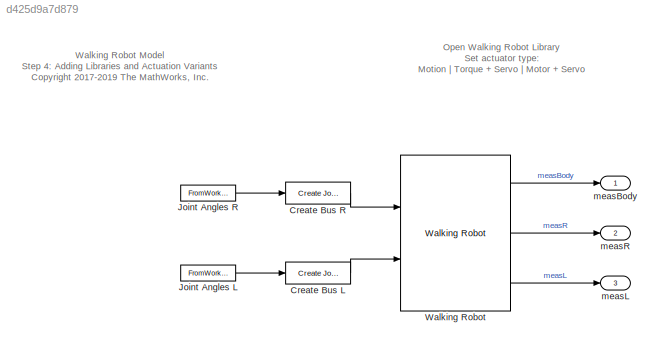
MODEL slx_d425d9a7d879
KIND model
CONFIG AbsTol = auto
CONFIG EnableMultiTasking = off
CONFIG FixedStep = auto
CONFIG MaxStep = auto
CONFIG MinStep = auto
CONFIG PreLoadFcn = robotParameters\nload jointAngs
CONFIG RelTol = 1e-3
CONFIG SampleTimeConstraint = Unconstrained
CONFIG Solver = VariableStepAuto
CONFIG SolverName = VariableStepAuto
CONFIG StartTime = 0.0
CONFIG StopTime = 10.0
BLOCK [Reference] Create Bus L  REF=walkingRobotUtils/Create Joint Angle Bus
  Ports = [1, 1]
  SourceBlock = walkingRobotUtils/Create Joint Angle Bus
  SourceType = SubSystem
BLOCK [Reference] Create Bus R  REF=walkingRobotUtils/Create Joint Angle Bus
  Ports = [1, 1]
  SourceBlock = walkingRobotUtils/Create Joint Angle Bus
  SourceType = SubSystem
BLOCK [FromWorkspace] Joint Angles L
  OutputAfterFinalValue = Holding final value
  SampleTime = 0
  VariableName = jAngsL
  ZeroCross = on
BLOCK [FromWorkspace] Joint Angles R
  OutputAfterFinalValue = Holding final value
  SampleTime = 0
  VariableName = jAngsR
  ZeroCross = on
BLOCK [Reference] Walking Robot  REF=walkingRobotUtils/Walking Robot
  Ports = [2, 3]
  SourceBlock = walkingRobotUtils/Walking Robot
  SourceType = SubSystem
BLOCK [Outport] measBody
  IconDisplay = Port number
  VectorParamsAs1DForOutWhenUnconnected = off
BLOCK [Outport] measL
  IconDisplay = Port number
  Port = 3
  VectorParamsAs1DForOutWhenUnconnected = off
BLOCK [Outport] measR
  IconDisplay = Port number
  Port = 2
  VectorParamsAs1DForOutWhenUnconnected = off
ANNOTATION (root): Open Walking Robot Library Set actuator type: Motion | Torque + Servo | Motor + Servo
ANNOTATION (root): Walking Robot Model Step 4: Adding Libraries and Actuation Variants <copyright redacted>
LINE Create Bus L:1 -> Walking Robot:2
LINE Create Bus R:1 -> Walking Robot:1
LINE Joint Angles L:1 -> Create Bus L:1
LINE Joint Angles R:1 -> Create Bus R:1
LINE Walking Robot:1 -> measBody:1
LINE Walking Robot:2 -> measR:1
LINE Walking Robot:3 -> measL:1
